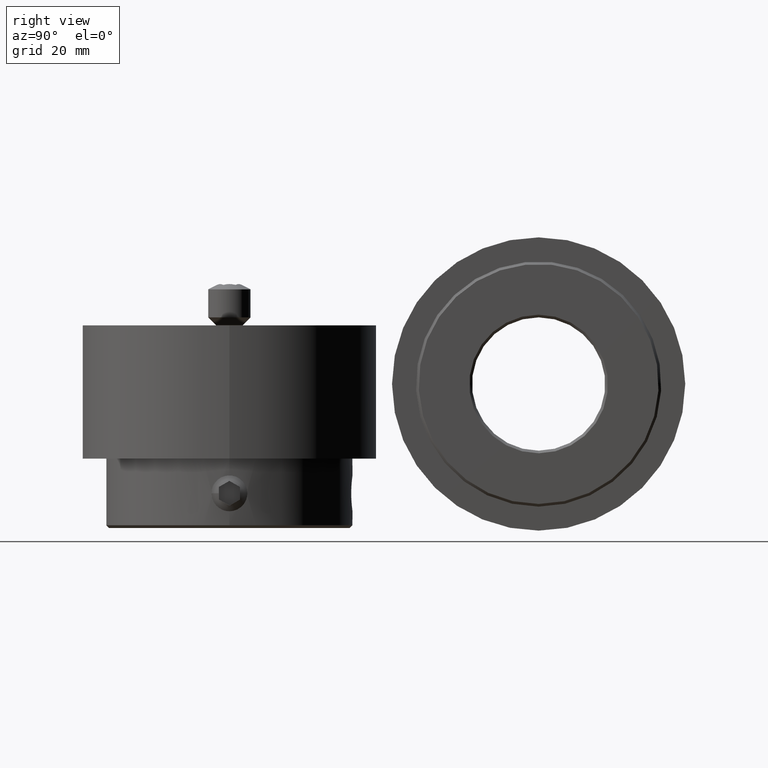
[diagram: clean part render]
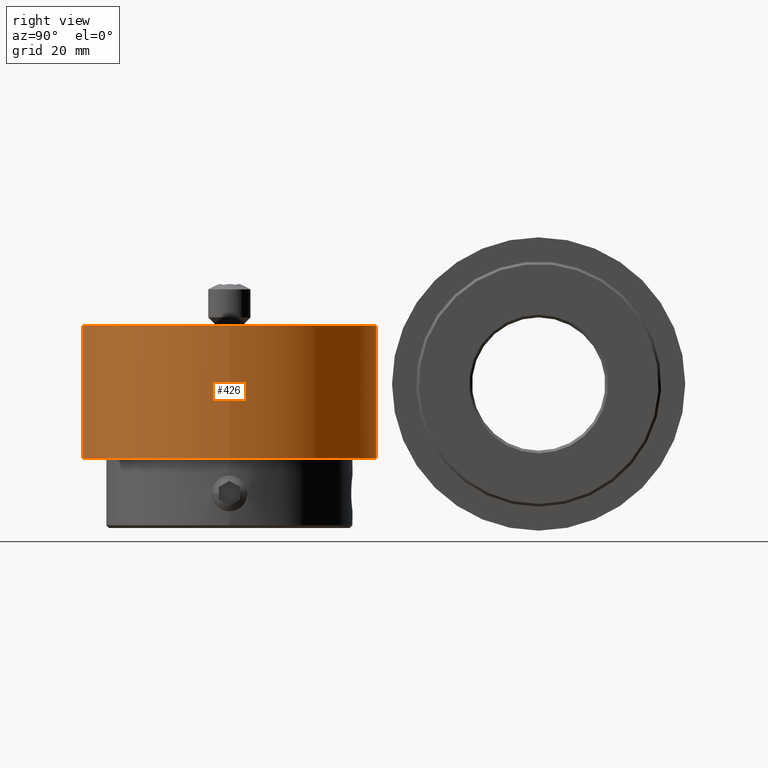
[diagram: same view with one face highlighted and labeled with its STEP entity id]
A machine part, right view. The second image highlights one B-rep face of the part: STEP entity #426.
In plain terms, the highlighted cylindrical surface (bore or boss wall) has radius 27.5 mm, axis along (-0, 0, -1).
Its self-contained STEP definition (entity closure, byte-faithful):
#426 = ADVANCED_FACE( '', ( #529, #530 ), #531, .T. );
#529 = FACE_OUTER_BOUND( '', #711, .T. );
#530 = FACE_OUTER_BOUND( '', #712, .T. );
#531 = CYLINDRICAL_SURFACE( '', #713, 27.5000000000000 );
#711 = EDGE_LOOP( '', ( #917 ) );
#712 = EDGE_LOOP( '', ( #918 ) );
#713 = AXIS2_PLACEMENT_3D( '', #919, #920, #921 );
#917 = ORIENTED_EDGE( '', *, *, #1263, .T. );
#918 = ORIENTED_EDGE( '', *, *, #1264, .F. );
#919 = CARTESIAN_POINT( '', ( 0.000000000000000, 0.000000000000000, -25.0000000000000 ) );
#920 = DIRECTION( '', ( -0.000000000000000, 0.000000000000000, -1.00000000000000 ) );
#921 = DIRECTION( '', ( 1.00000000000000, 0.000000000000000, 0.000000000000000 ) );
#1263 = EDGE_CURVE( '', #1379, #1379, #1380, .T. );
#1264 = EDGE_CURVE( '', #1381, #1381, #1382, .T. );
#1379 = VERTEX_POINT( '', #1815 );
#1380 = CIRCLE( '', #1816, 27.5000000000000 );
#1381 = VERTEX_POINT( '', #1817 );
#1382 = CIRCLE( '', #1818, 27.5000000000000 );
#1815 = CARTESIAN_POINT( '', ( 27.5000000000000, 0.000000000000000, -25.0000000000000 ) );
#1816 = AXIS2_PLACEMENT_3D( '', #2415, #2416, #2417 );
#1817 = CARTESIAN_POINT( '', ( 27.5000000000000, 0.000000000000000, 0.000000000000000 ) );
#1818 = AXIS2_PLACEMENT_3D( '', #2418, #2419, #2420 );
#2415 = CARTESIAN_POINT( '', ( 0.000000000000000, 0.000000000000000, -25.0000000000000 ) );
#2416 = DIRECTION( '', ( 0.000000000000000, 0.000000000000000, 1.00000000000000 ) );
#2417 = DIRECTION( '', ( 1.00000000000000, 0.000000000000000, 0.000000000000000 ) );
#2418 = CARTESIAN_POINT( '', ( 0.000000000000000, 0.000000000000000, 0.000000000000000 ) );
#2419 = DIRECTION( '', ( 0.000000000000000, 0.000000000000000, 1.00000000000000 ) );
#2420 = DIRECTION( '', ( 1.00000000000000, 0.000000000000000, 0.000000000000000 ) );